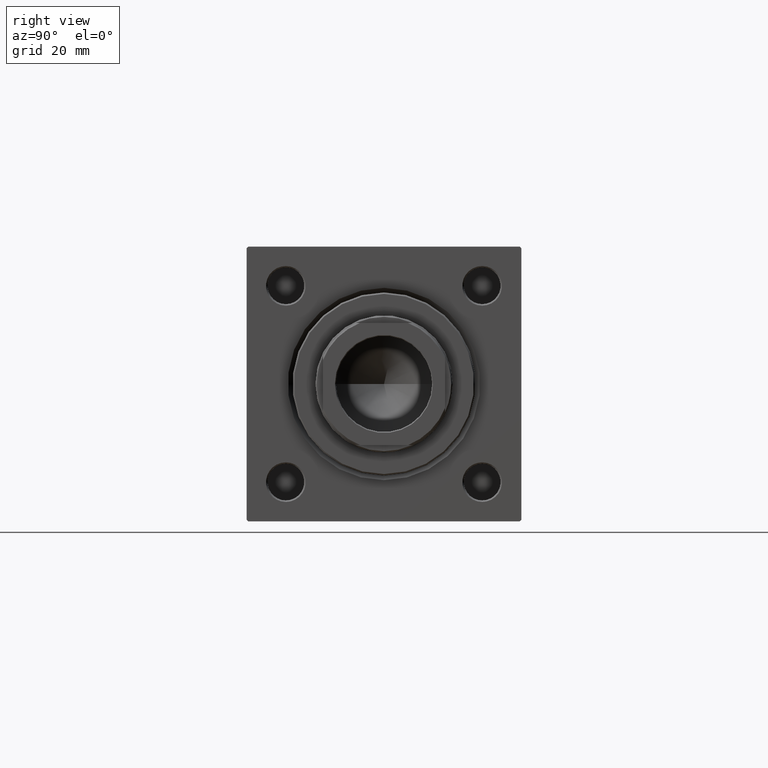
[diagram: clean part render]
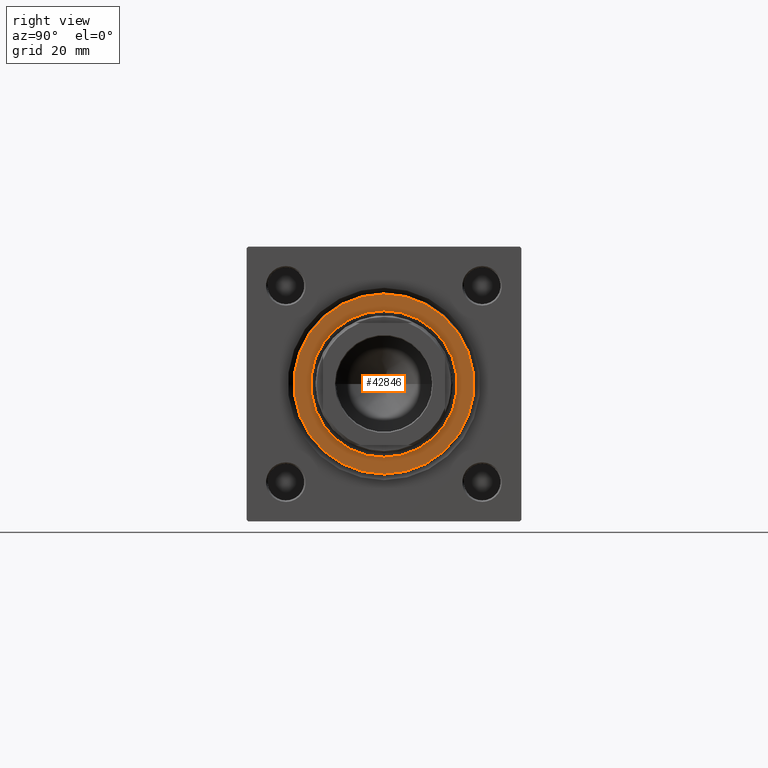
[diagram: same view with one face highlighted and labeled with its STEP entity id]
A machine part, right view. The second image highlights one B-rep face of the part: STEP entity #42846.
In plain terms, the highlighted planar face has unit normal (1, 0, 0).
Its self-contained STEP definition (entity closure, byte-faithful):
#455 = CARTESIAN_POINT ( 'NONE',  ( 0.000000000000000000, 0.000000000000000000, 41.70000000000000284 ) ) ;
#603 = DIRECTION ( 'NONE',  ( 0.000000000000000000, 0.000000000000000000, 1.000000000000000000 ) ) ;
#2462 = EDGE_CURVE ( 'NONE', #25192, #46055, #47707, .T. ) ;
#2732 = AXIS2_PLACEMENT_3D ( 'NONE', #20254, #28124, #43570 ) ;
#3546 = ORIENTED_EDGE ( 'NONE', *, *, #2462, .F. ) ;
#4898 = DIRECTION ( 'NONE',  ( 0.000000000000000000, 0.000000000000000000, 1.000000000000000000 ) ) ;
#6194 = CIRCLE ( 'NONE', #16734, 24.00000000000000355 ) ;
#7999 = AXIS2_PLACEMENT_3D ( 'NONE', #31561, #4898, #12033 ) ;
#10531 = AXIS2_PLACEMENT_3D ( 'NONE', #41424, #25969, #14561 ) ;
#12033 = DIRECTION ( 'NONE',  ( 1.000000000000000000, 0.000000000000000000, 0.000000000000000000 ) ) ;
#12872 = DIRECTION ( 'NONE',  ( 1.000000000000000000, 0.000000000000000000, 0.000000000000000000 ) ) ;
#13782 = EDGE_CURVE ( 'NONE', #37824, #21454, #47250, .T. ) ;
#14561 = DIRECTION ( 'NONE',  ( 1.000000000000000000, 0.000000000000000000, -0.000000000000000000 ) ) ;
#15926 = CARTESIAN_POINT ( 'NONE',  ( 29.50000000000000000, 3.643324227463375391E-15, 41.70000000000000284 ) ) ;
#16734 = AXIS2_PLACEMENT_3D ( 'NONE', #27485, #603, #39388 ) ;
#20116 = AXIS2_PLACEMENT_3D ( 'NONE', #455, #35204, #12872 ) ;
#20254 = CARTESIAN_POINT ( 'NONE',  ( 0.000000000000000000, 0.000000000000000000, 41.70000000000000284 ) ) ;
#21106 = CARTESIAN_POINT ( 'NONE',  ( -24.00000000000000355, 2.939152317953648289E-15, 41.70000000000000284 ) ) ;
#21454 = VERTEX_POINT ( 'NONE', #37323 ) ;
#22406 = PLANE ( 'NONE',  #10531 ) ;
#23941 = CARTESIAN_POINT ( 'NONE',  ( 24.00000000000000355, 0.000000000000000000, 41.70000000000000284 ) ) ;
#24968 = CIRCLE ( 'NONE', #20116, 29.50000000000000000 ) ;
#25127 = EDGE_LOOP ( 'NONE', ( #33218, #3546 ) ) ;
#25156 = EDGE_CURVE ( 'NONE', #46055, #25192, #6194, .T. ) ;
#25192 = VERTEX_POINT ( 'NONE', #21106 ) ;
#25969 = DIRECTION ( 'NONE',  ( 0.000000000000000000, 0.000000000000000000, 1.000000000000000000 ) ) ;
#27485 = CARTESIAN_POINT ( 'NONE',  ( 0.000000000000000000, 0.000000000000000000, 41.70000000000000284 ) ) ;
#28124 = DIRECTION ( 'NONE',  ( 0.000000000000000000, 0.000000000000000000, 1.000000000000000000 ) ) ;
#28649 = ORIENTED_EDGE ( 'NONE', *, *, #38569, .T. ) ;
#30787 = EDGE_LOOP ( 'NONE', ( #28649, #50084 ) ) ;
#31561 = CARTESIAN_POINT ( 'NONE',  ( 0.000000000000000000, 0.000000000000000000, 41.70000000000000284 ) ) ;
#33218 = ORIENTED_EDGE ( 'NONE', *, *, #25156, .F. ) ;
#35204 = DIRECTION ( 'NONE',  ( 0.000000000000000000, 0.000000000000000000, 1.000000000000000000 ) ) ;
#37323 = CARTESIAN_POINT ( 'NONE',  ( -29.50000000000000000, 0.000000000000000000, 41.70000000000000284 ) ) ;
#37824 = VERTEX_POINT ( 'NONE', #15926 ) ;
#38569 = EDGE_CURVE ( 'NONE', #21454, #37824, #24968, .T. ) ;
#39388 = DIRECTION ( 'NONE',  ( 1.000000000000000000, 0.000000000000000000, 0.000000000000000000 ) ) ;
#41424 = CARTESIAN_POINT ( 'NONE',  ( 0.000000000000000000, 0.000000000000000000, 41.70000000000000284 ) ) ;
#42846 = ADVANCED_FACE ( 'NONE', ( #49294, #45481 ), #22406, .T. ) ;
#43570 = DIRECTION ( 'NONE',  ( 1.000000000000000000, 0.000000000000000000, 0.000000000000000000 ) ) ;
#45481 = FACE_OUTER_BOUND ( 'NONE', #30787, .T. ) ;
#46055 = VERTEX_POINT ( 'NONE', #23941 ) ;
#47250 = CIRCLE ( 'NONE', #2732, 29.50000000000000000 ) ;
#47707 = CIRCLE ( 'NONE', #7999, 24.00000000000000355 ) ;
#49294 = FACE_BOUND ( 'NONE', #25127, .T. ) ;
#50084 = ORIENTED_EDGE ( 'NONE', *, *, #13782, .T. ) ;